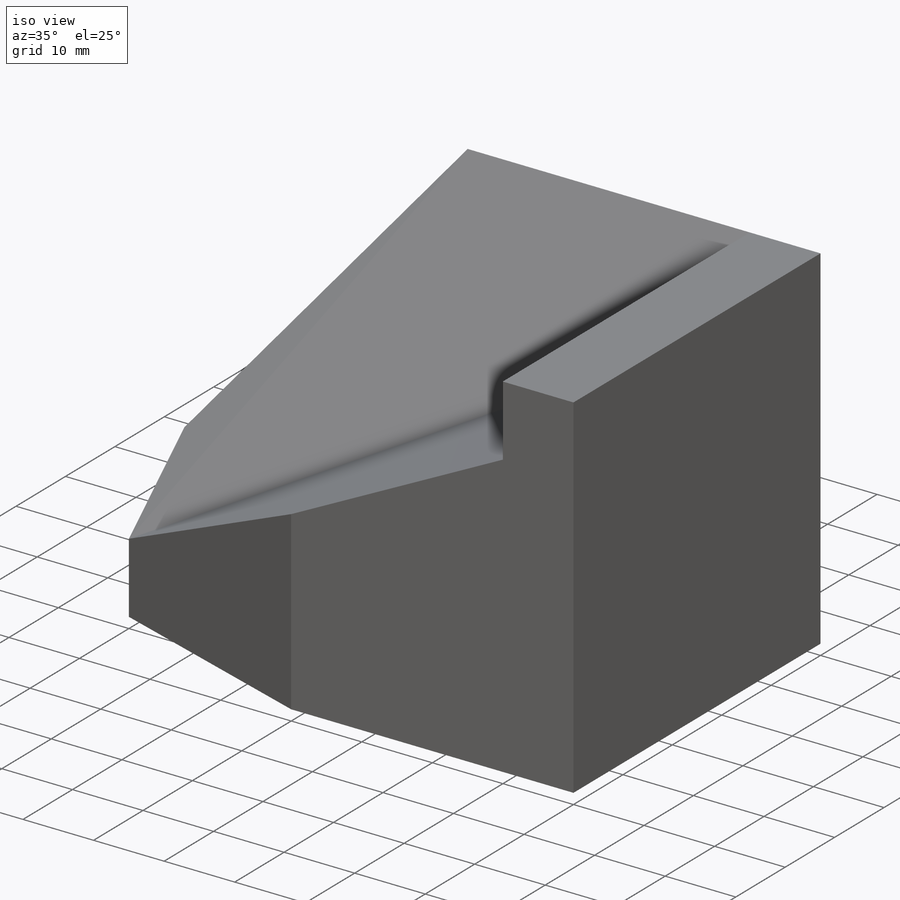
[diagram: iso view]
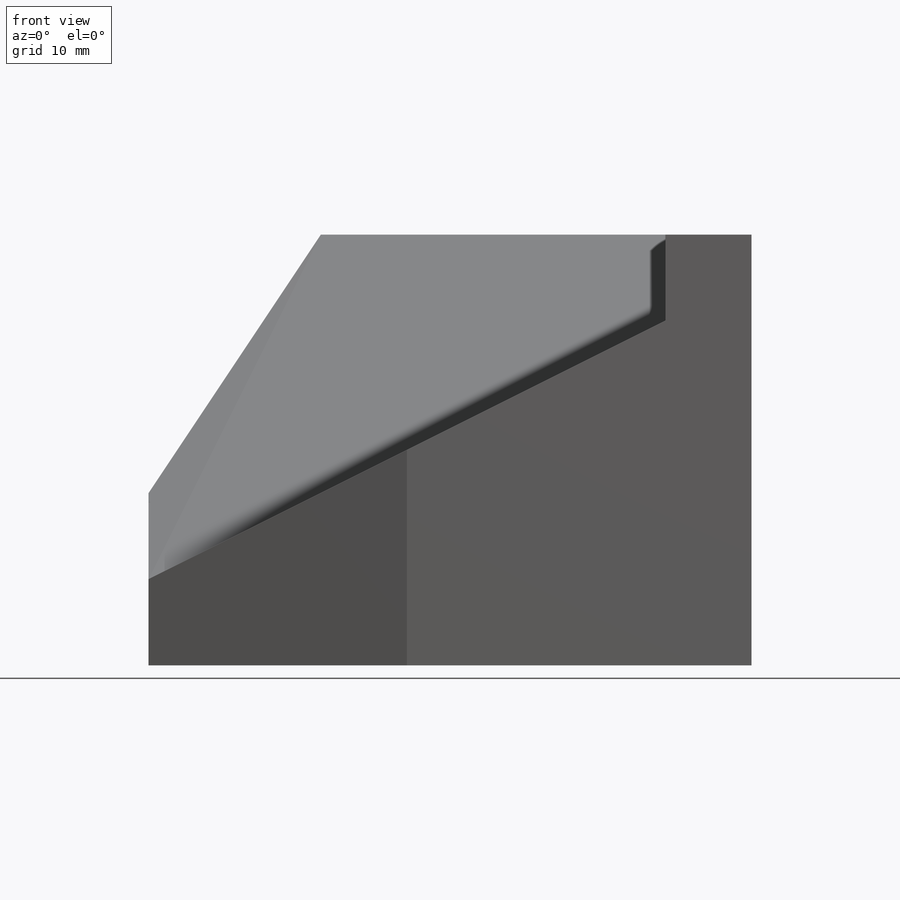
[diagram: front view]
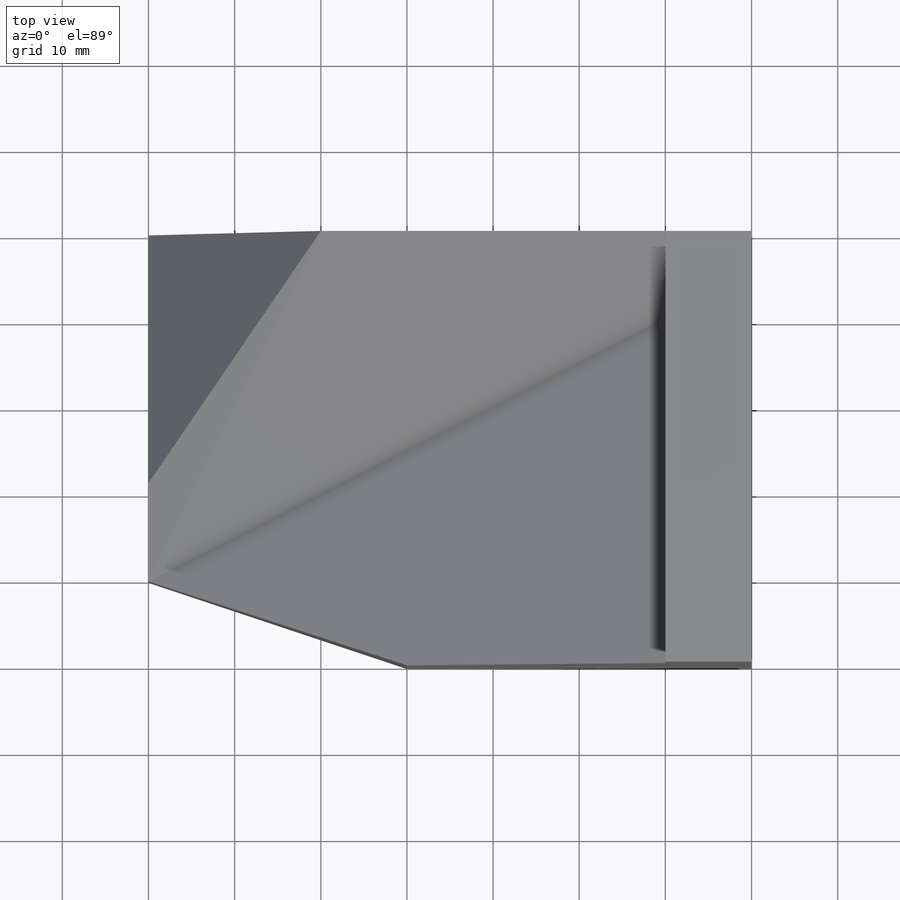
[diagram: top view]
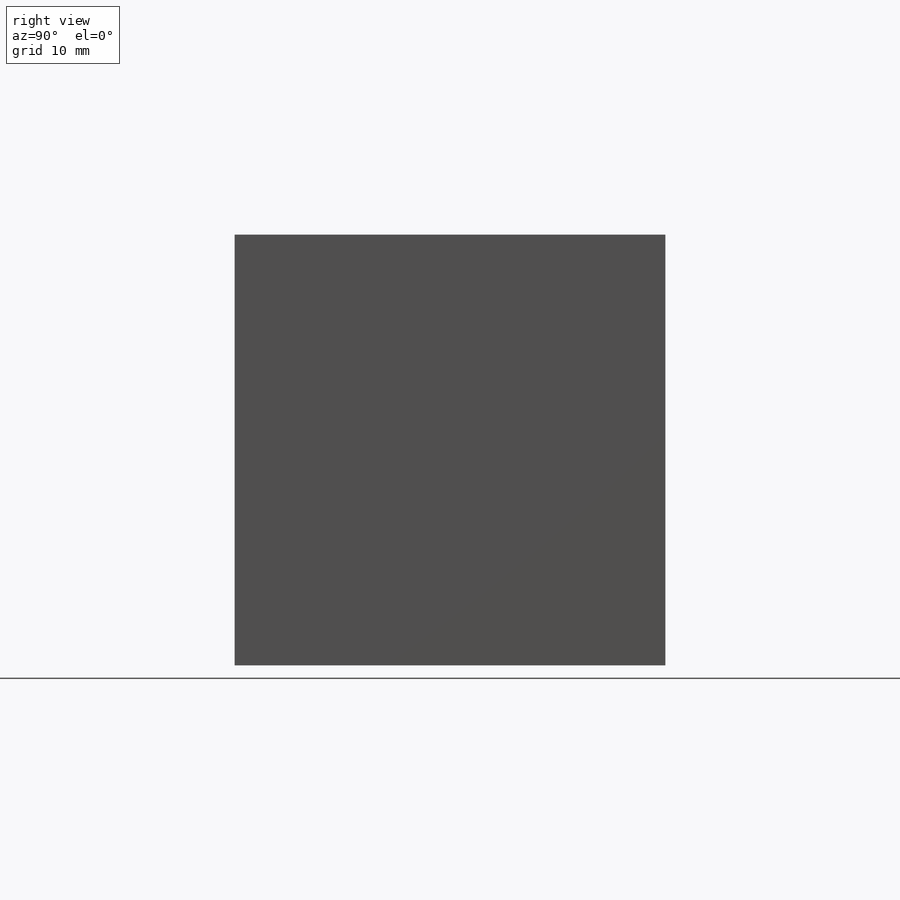
[diagram: right view]
SOLIDWORKS PART (.sldprt)
format: sldprt  version: not decoded by parser v0  size: 571,904 bytes
history: native  units: mm
features: sketch x36, cut_extrude x22, extrude x12, plane x5, material x1 (+13 scaffold rows collapsed)
feature tree (89):
  scaffold x13  (default folders/planes/origin — collapsed)
  material  "Material <not specified>"
  sketch  "Sketch1"  dims[D1=70.0mm D2=50.0mm]
  extrude  "Boss-Extrude1"  Depth=50mm
  sketch  "Sketch2"  dims[D1=20.0mm D2=30.0mm]
  cut_extrude  "Cut-Extrude1"  Depth=50mm
  sketch  "Sketch3"  dims[D1=10.0mm D2=30.0mm]
  cut_extrude  "Cut-Extrude2"  Depth=50mm
  sketch  "Sketch4"  dims[D1=10.0mm D2=40.0mm D3=50.0mm]
  cut_extrude  "Cut-Extrude4"  Depth=30mm
  plane  "Plane1"
  sketch  "Sketch6"  dims[D1=5.0mm D2=15.0mm]
  extrude  "Boss-Extrude2"  Depth=50mm
  sketch  "Sketch7"  dims[D1=10.0mm]
  extrude  "Boss-Extrude3"  Depth=50mm
  sketch  "Sketch8"  dims[D1=10.0mm D2=30.0mm]
  cut_extrude  "Cut-Extrude5"  Depth=50mm
  sketch  "Sketch10"  dims[D1=10.0mm D2=10.0mm D3=0.0mm D4=~68.269178mm]
  cut_extrude  "Cut-Extrude6"  Depth=50mm
  sketch  "Sketch11"  dims[D1=10.0mm]
  plane  "Plane2"
  sketch  "Sketch12"
  extrude  "Boss-Extrude4"  Depth=50mm
  sketch  "Sketch14"  dims[D1=30.0mm D2=20.0mm]
  extrude  "Boss-Extrude7"  Depth=30mm
  sketch  "Sketch15"
  cut_extrude  "Cut-Extrude7"  Depth=51mm
  sketch  "Sketch16"  dims[D1=~48.171889mm D2=~65.23805mm]
  cut_extrude  "Cut-Extrude8"  Depth=51mm
  sketch  "Sketch17"
  cut_extrude  "Cut-Extrude9"  Depth=51mm
  plane  "Plane3"
  sketch  "Sketch18"
  cut_extrude  "Cut-Extrude10"  Depth=51mm
  sketch  "Sketch19"
  cut_extrude  "Cut-Extrude11"  Depth=51mm
  sketch  "Sketch20"
  cut_extrude  "Cut-Extrude12"  Depth=51mm
  sketch  "Sketch21"
  extrude  "Boss-Extrude8"  Depth=51mm
  sketch  "Sketch22"
  cut_extrude  "Cut-Extrude13"  Depth=51mm
  sketch  "Sketch23"
  cut_extrude  "Cut-Extrude14"  Depth=51mm
  sketch  "Sketch24"
  cut_extrude  "Cut-Extrude15"  Depth=51mm
  sketch  "Sketch25"
  extrude  "Boss-Extrude9"  Depth=51mm
  sketch  "Sketch26"
  extrude  "Boss-Extrude10"  Depth=51mm
  sketch  "Sketch27"  dims[D1=~9.153471mm]
  extrude  "Boss-Extrude11"  Depth=51mm
  sketch  "Sketch28"
  cut_extrude  "Cut-Extrude16"  Depth=51mm
  sketch  "Sketch29"  dims[D1=70.0mm D2=84.422mm]
  cut_extrude  "Cut-Extrude17"  Depth=51mm
  sketch  "Sketch30"  dims[D1=40.0mm]
  cut_extrude  "Cut-Extrude18"  Depth=51mm
  sketch  "Sketch31"
  cut_extrude  "Cut-Extrude19"  Depth=20mm
  sketch  "Sketch32"
  extrude  "Boss-Extrude12"  Depth=20mm
  plane  "Plane4"
  sketch  "Sketch33"
  plane  "Plane7"
  sketch  "Sketch40"
  cut_extrude  "Cut-Extrude24"  Depth=20mm
  sketch  "Sketch41"
  extrude  "Boss-Extrude14"  Depth=20mm
  sketch  "Sketch42"
  cut_extrude  "Cut-Extrude25"  Depth=20mm
  sketch  "Sketch43"
  extrude  "Boss-Extrude15"  Depth=20mm
  sketch  "Sketch44"
  cut_extrude  "Cut-Extrude26"  Depth=20mm
  sketch  "Sketch45"
  cut_extrude  "Cut-Extrude27"  Depth=20mm
decode coverage: 48 of 70 modeling features carry decoded parameters
note: ~ marks probable driven/reference dimensions
note: suppression state not decoded; provenance and decode notes live in map.json
